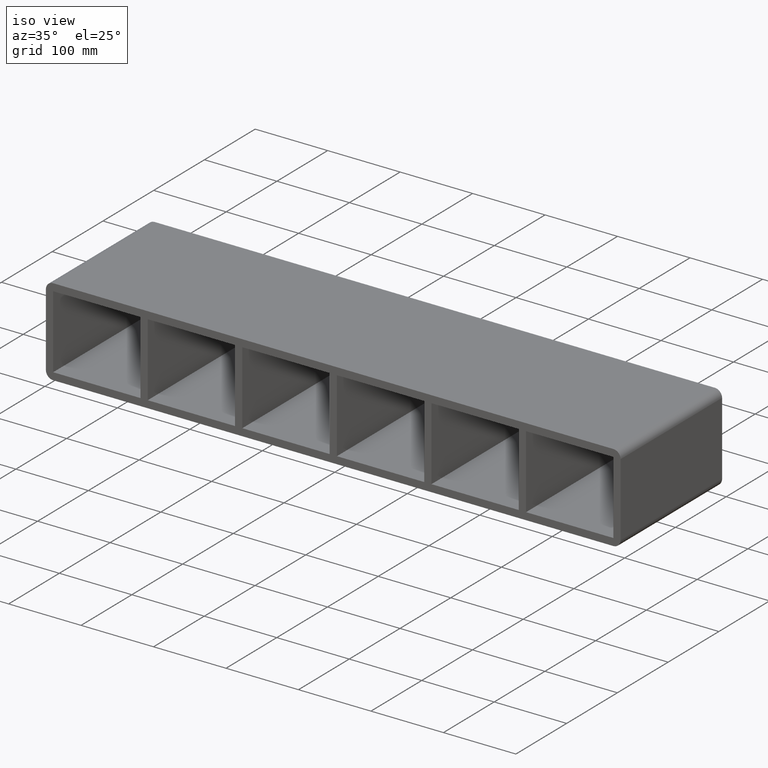
[diagram: clean part render]
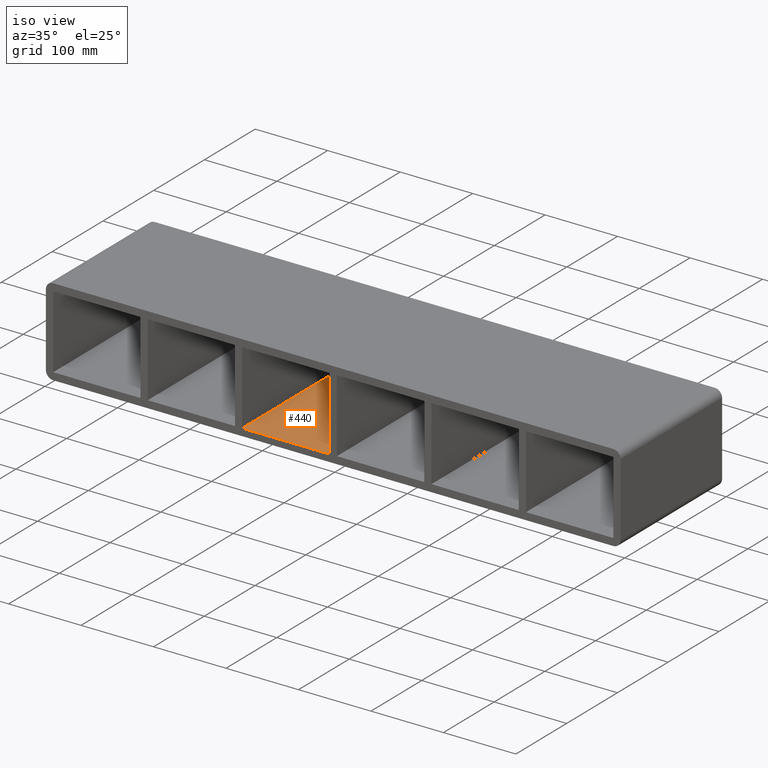
[diagram: same view with one face highlighted and labeled with its STEP entity id]
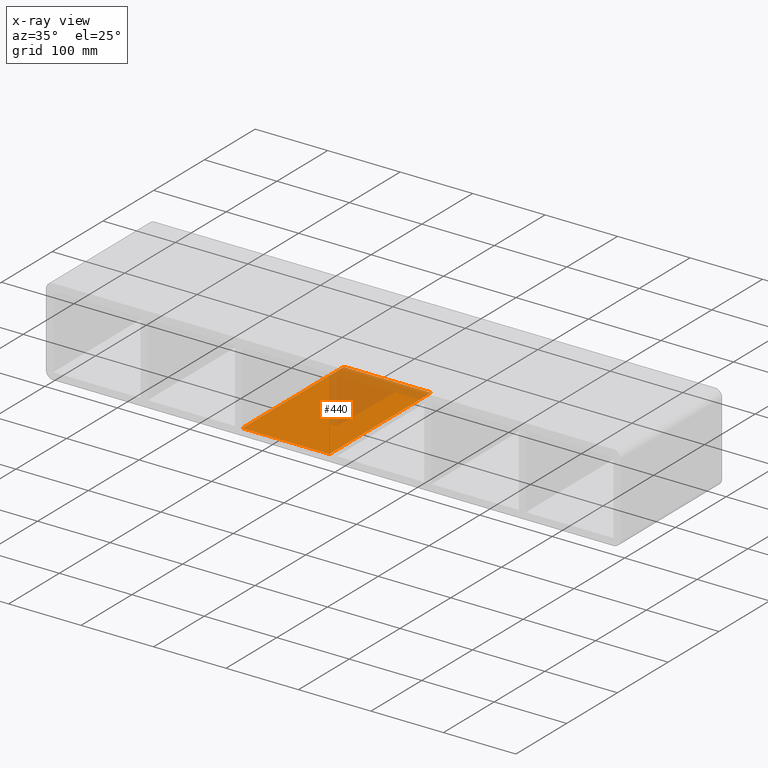
[diagram: x-ray of the same camera — body ghosted, the highlighted face saturated]
A machine part, iso view. The second image highlights one B-rep face of the part: STEP entity #440.
The next image is the same camera in x-ray: the body ghosted, the highlighted face saturated — about 35% of this face is hidden behind the body in this view.
In plain terms, the highlighted planar face has unit normal (0, 0, -1).
Its self-contained STEP definition (entity closure, byte-faithful):
#233=CARTESIAN_POINT('',(-5.000000000001208,-3.0,-50.500000000000007));
#234=VERTEX_POINT('',#233);
#251=CARTESIAN_POINT('',(-5.000000000001208,197.0,-50.500000000000007));
#252=VERTEX_POINT('',#251);
#259=CARTESIAN_POINT('',(-5.000000000001208,-3.0,-50.500000000000007));
#260=DIRECTION('',(0.0,1.0,0.0));
#261=VECTOR('',#260,199.99999999999997);
#262=LINE('',#259,#261);
#263=EDGE_CURVE('',#234,#252,#262,.T.);
#355=CARTESIAN_POINT('',(-125.49999999998545,-3.0,-50.499999999971422));
#356=VERTEX_POINT('',#355);
#363=CARTESIAN_POINT('',(-125.49999999998545,197.0,-50.499999999971422));
#364=VERTEX_POINT('',#363);
#365=CARTESIAN_POINT('',(-125.49999999998546,196.99999999999997,-50.500000000000007));
#366=DIRECTION('',(0.0,-1.0,0.0));
#367=VECTOR('',#366,199.99999999999997);
#368=LINE('',#365,#367);
#369=EDGE_CURVE('',#364,#356,#368,.T.);
#419=CARTESIAN_POINT('',(386.50000000000006,0.0,-50.500000000000007));
#420=DIRECTION('',(0.0,0.0,-1.0));
#421=DIRECTION('',(-1.0,0.0,0.0));
#422=AXIS2_PLACEMENT_3D('',#419,#420,#421);
#423=PLANE('',#422);
#424=ORIENTED_EDGE('',*,*,#263,.T.);
#425=CARTESIAN_POINT('',(-125.49999999998542,197.0,-50.500000000000007));
#426=DIRECTION('',(1.0,0.0,0.0));
#427=VECTOR('',#426,120.4999999999842);
#428=LINE('',#425,#427);
#429=EDGE_CURVE('',#364,#252,#428,.T.);
#430=ORIENTED_EDGE('',*,*,#429,.F.);
#431=ORIENTED_EDGE('',*,*,#369,.T.);
#432=CARTESIAN_POINT('',(-5.000000000001222,-3.0,-50.500000000000007));
#433=DIRECTION('',(-1.0,0.0,0.0));
#434=VECTOR('',#433,120.4999999999842);
#435=LINE('',#432,#434);
#436=EDGE_CURVE('',#234,#356,#435,.T.);
#437=ORIENTED_EDGE('',*,*,#436,.F.);
#438=EDGE_LOOP('',(#424,#430,#431,#437));
#439=FACE_OUTER_BOUND('',#438,.T.);
#440=ADVANCED_FACE('',(#439),#423,.F.);